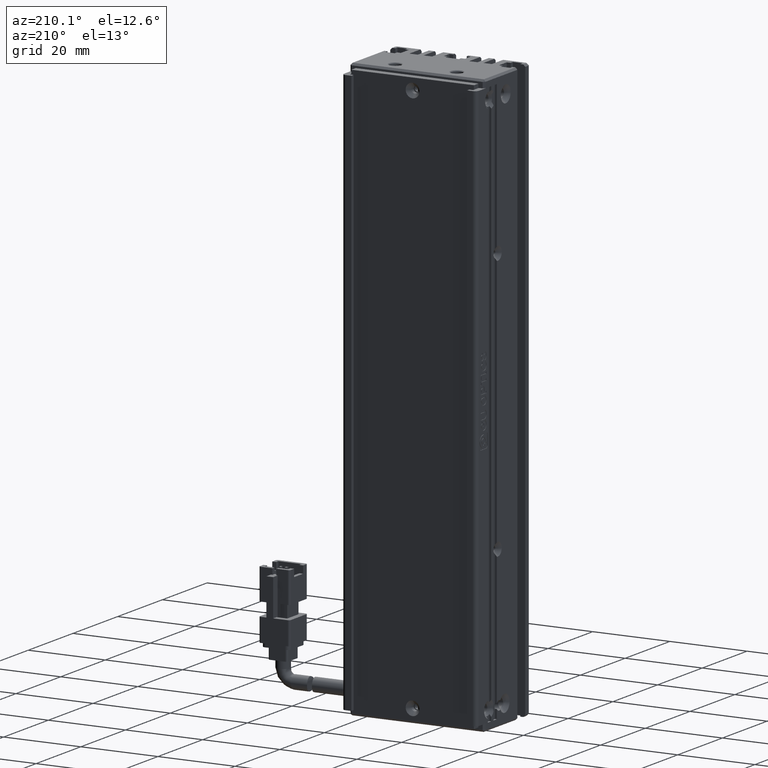
[diagram: clean part render]
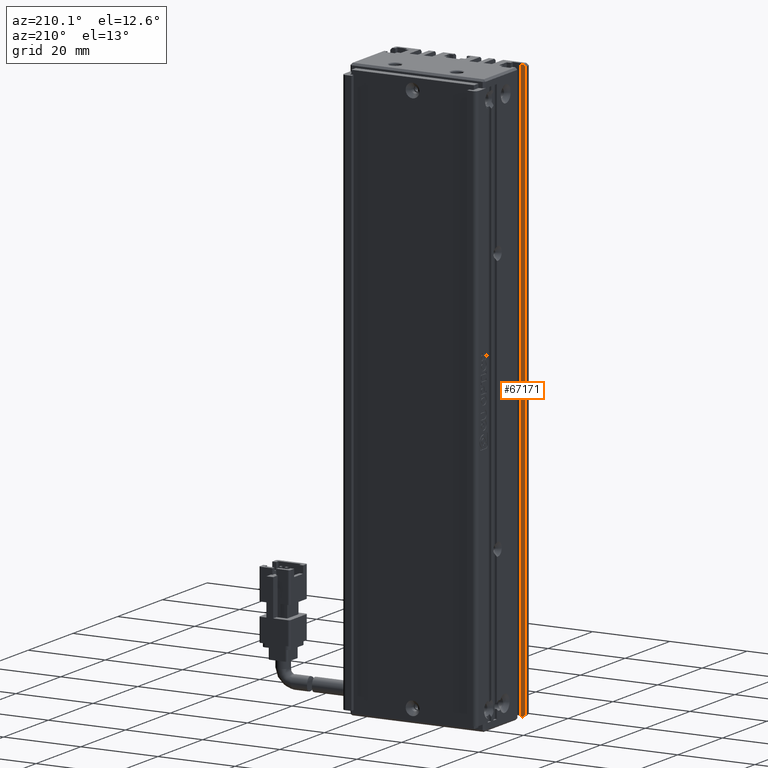
[diagram: same view with one face highlighted and labeled with its STEP entity id]
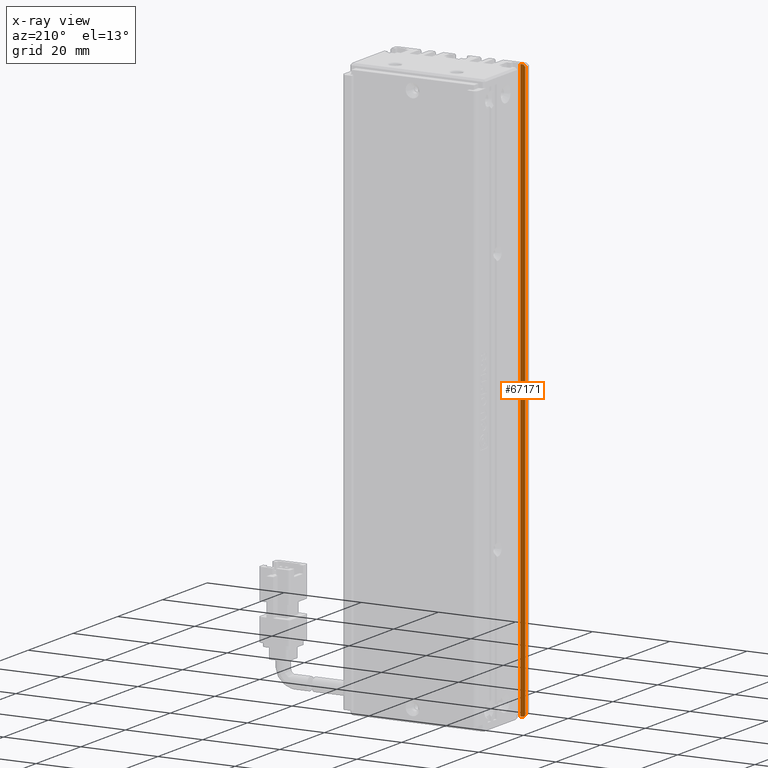
[diagram: x-ray of the same camera — body ghosted, the highlighted face saturated]
A machine part, auxiliary view. The second image highlights one B-rep face of the part: STEP entity #67171.
The next image is the same camera in x-ray: the body ghosted, the highlighted face saturated — about 0% of this face is hidden behind the body in this view.
In plain terms, the highlighted planar face has unit normal (-0, -1, 0).
Its self-contained STEP definition (entity closure, byte-faithful):
#947 = CARTESIAN_POINT ( 'NONE',  ( 23.92537974683540000, 13.29073232304837200, -40.00000000000000700 ) ) ;
#2067 = VERTEX_POINT ( 'NONE', #21355 ) ;
#2314 = LINE ( 'NONE', #50829, #68122 ) ;
#3640 = CARTESIAN_POINT ( 'NONE',  ( 23.42537974683542100, 13.29073232304837400, -40.00000000000000700 ) ) ;
#4146 = ORIENTED_EDGE ( 'NONE', *, *, #25038, .F. ) ;
#6565 = CARTESIAN_POINT ( 'NONE',  ( 24.72537974683541900, 13.29073232304837000, -40.00000000000000700 ) ) ;
#6989 = LINE ( 'NONE', #3640, #54858 ) ;
#10169 = ORIENTED_EDGE ( 'NONE', *, *, #59101, .F. ) ;
#10744 = DIRECTION ( 'NONE',  ( -1.000000000000000000, 2.001604010742476800E-015, -0.0000000000000000000 ) ) ;
#13260 = DIRECTION ( 'NONE',  ( -0.7071067811865376900, 1.226634733346749400E-015, -0.7071067811865573400 ) ) ;
#13855 = PLANE ( 'NONE',  #23244 ) ;
#14069 = ORIENTED_EDGE ( 'NONE', *, *, #17743, .F. ) ;
#17133 = VECTOR ( 'NONE', #61544, 1000.000000000000000 ) ;
#17743 = EDGE_CURVE ( 'NONE', #38692, #57392, #61789, .T. ) ;
#19108 = DIRECTION ( 'NONE',  ( 0.7071067811865524600, -1.226634733346757900E-015, -0.7071067811865426900 ) ) ;
#19789 = CARTESIAN_POINT ( 'NONE',  ( 40.92537974683543900, 13.29073232304833900, -40.00000000000000700 ) ) ;
#21355 = CARTESIAN_POINT ( 'NONE',  ( 23.42537974683542100, 13.29073232304837200, -40.49999999999999300 ) ) ;
#21374 = VERTEX_POINT ( 'NONE', #6565 ) ;
#21918 = DIRECTION ( 'NONE',  ( -0.0000000000000000000, -0.0000000000000000000, -1.000000000000000000 ) ) ;
#23244 = AXIS2_PLACEMENT_3D ( 'NONE', #19789, #63211, #40891 ) ;
#25038 = EDGE_CURVE ( 'NONE', #57392, #63298, #64063, .T. ) ;
#25247 = LINE ( 'NONE', #32933, #50035 ) ;
#30314 = EDGE_LOOP ( 'NONE', ( #14069, #10169, #48762, #65422, #31116, #4146 ) ) ;
#31116 = ORIENTED_EDGE ( 'NONE', *, *, #33014, .T. ) ;
#32375 = FACE_OUTER_BOUND ( 'NONE', #30314, .T. ) ;
#32627 = EDGE_CURVE ( 'NONE', #21374, #69554, #2314, .T. ) ;
#32933 = CARTESIAN_POINT ( 'NONE',  ( 24.72537974683541900, 13.29073232304837000, -40.00000000000000700 ) ) ;
#33014 = EDGE_CURVE ( 'NONE', #21374, #63298, #25247, .T. ) ;
#38692 = VERTEX_POINT ( 'NONE', #65370 ) ;
#40891 = DIRECTION ( 'NONE',  ( 1.000000000000000000, -2.001604010742476800E-015, 0.0000000000000000000 ) ) ;
#43939 = VECTOR ( 'NONE', #19108, 1000.000000000000000 ) ;
#48762 = ORIENTED_EDGE ( 'NONE', *, *, #70550, .F. ) ;
#50035 = VECTOR ( 'NONE', #21918, 1000.000000000000000 ) ;
#50216 = CARTESIAN_POINT ( 'NONE',  ( 24.72537974683541900, 13.29073232304837200, -190.0000000000000000 ) ) ;
#50829 = CARTESIAN_POINT ( 'NONE',  ( 40.92537974683543900, 13.29073232304833900, -40.00000000000000700 ) ) ;
#54653 = CARTESIAN_POINT ( 'NONE',  ( 40.92537974683543900, 13.29073232304833900, -190.0000000000000000 ) ) ;
#54796 = CARTESIAN_POINT ( 'NONE',  ( 23.92537974683539700, 13.29073232304837200, -40.00000000000000700 ) ) ;
#54858 = VECTOR ( 'NONE', #70031, 1000.000000000000000 ) ;
#55663 = VECTOR ( 'NONE', #13260, 1000.000000000000100 ) ;
#57392 = VERTEX_POINT ( 'NONE', #70365 ) ;
#59101 = EDGE_CURVE ( 'NONE', #2067, #38692, #6989, .T. ) ;
#61544 = DIRECTION ( 'NONE',  ( 1.000000000000000000, -2.001604010742476800E-015, 0.0000000000000000000 ) ) ;
#61789 = LINE ( 'NONE', #64664, #43939 ) ;
#62520 = LINE ( 'NONE', #54796, #55663 ) ;
#63211 = DIRECTION ( 'NONE',  ( -2.001604010742476800E-015, -1.000000000000000000, 0.0000000000000000000 ) ) ;
#63298 = VERTEX_POINT ( 'NONE', #50216 ) ;
#64063 = LINE ( 'NONE', #54653, #17133 ) ;
#64664 = CARTESIAN_POINT ( 'NONE',  ( 23.42537974683542100, 13.29073232304837400, -189.5000000000000300 ) ) ;
#65370 = CARTESIAN_POINT ( 'NONE',  ( 23.42537974683543200, 13.29073232304837200, -189.5000000000000300 ) ) ;
#65422 = ORIENTED_EDGE ( 'NONE', *, *, #32627, .F. ) ;
#67171 = ADVANCED_FACE ( 'NONE', ( #32375 ), #13855, .F. ) ;
#68122 = VECTOR ( 'NONE', #10744, 1000.000000000000000 ) ;
#69554 = VERTEX_POINT ( 'NONE', #947 ) ;
#70031 = DIRECTION ( 'NONE',  ( -0.0000000000000000000, -0.0000000000000000000, -1.000000000000000000 ) ) ;
#70365 = CARTESIAN_POINT ( 'NONE',  ( 23.92537974683540400, 13.29073232304837200, -190.0000000000000000 ) ) ;
#70550 = EDGE_CURVE ( 'NONE', #69554, #2067, #62520, .T. ) ;